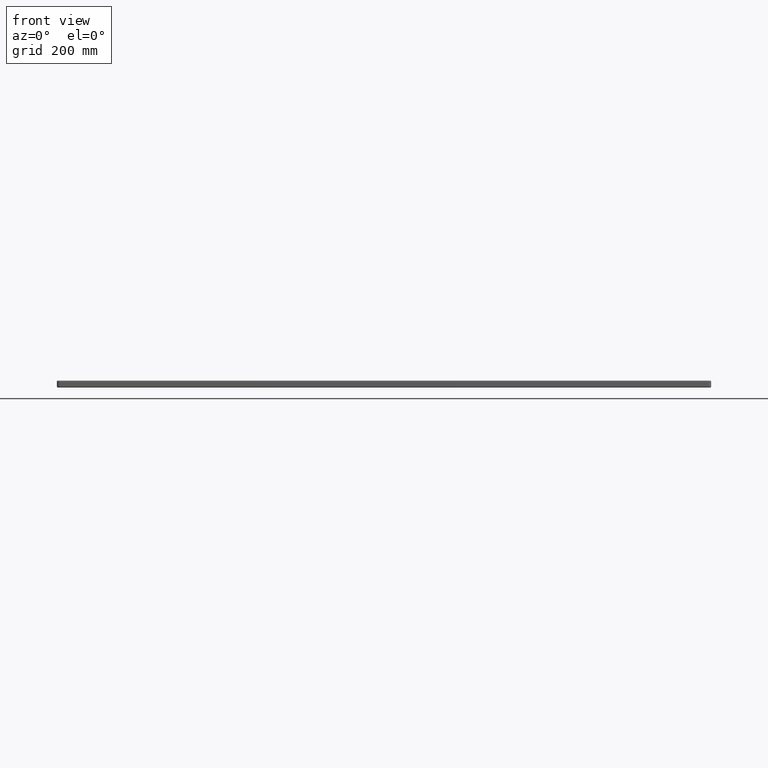
[diagram: clean part render]
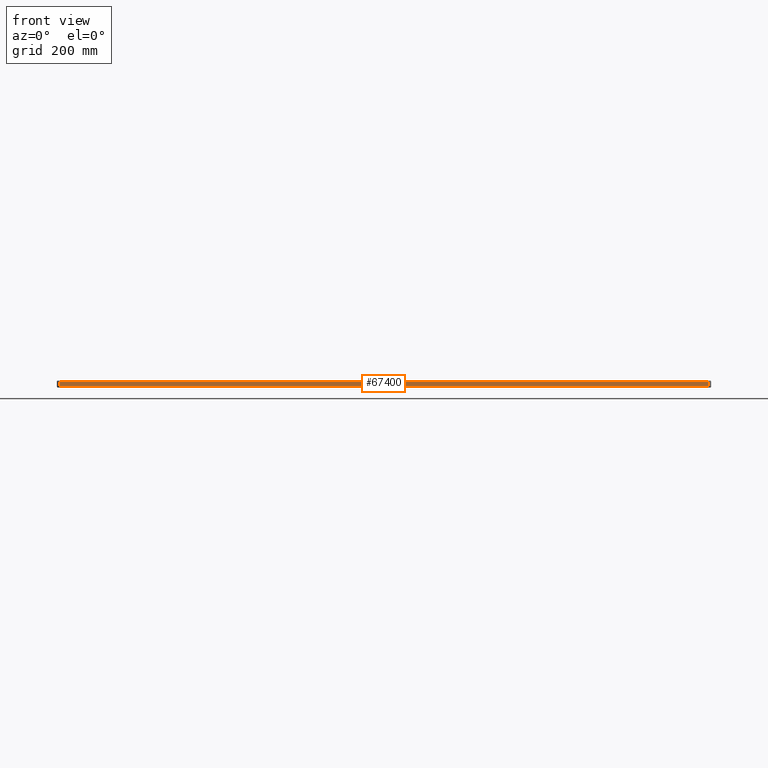
[diagram: same view with one face highlighted and labeled with its STEP entity id]
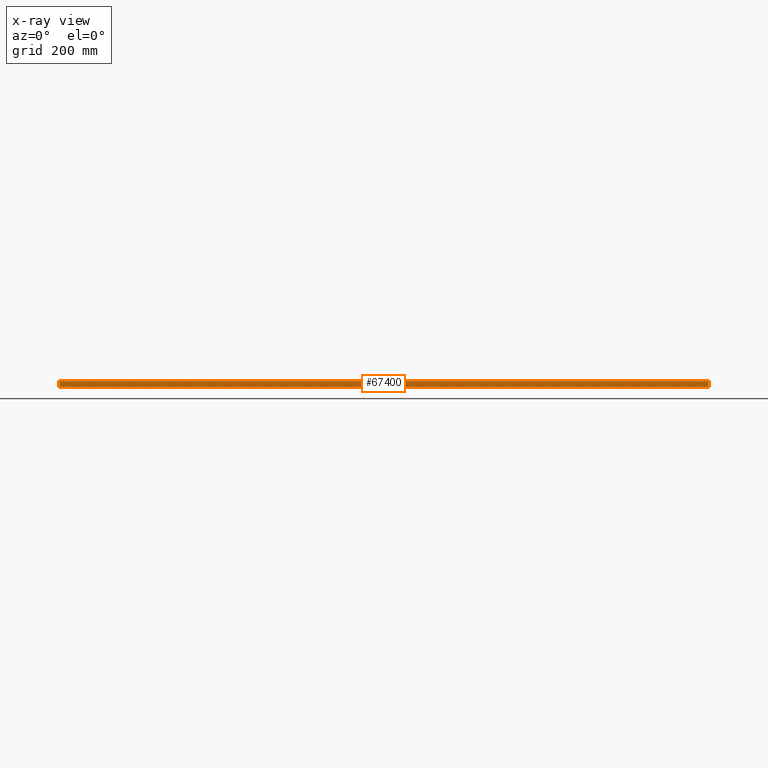
[diagram: x-ray of the same camera — body ghosted, the highlighted face saturated]
A machine part, front view. The second image highlights one B-rep face of the part: STEP entity #67400.
The next image is the same camera in x-ray: the body ghosted, the highlighted face saturated — about 0% of this face is hidden behind the body in this view.
In plain terms, the highlighted planar face has unit normal (0, -1, 0).
Its self-contained STEP definition (entity closure, byte-faithful):
#597 = CARTESIAN_POINT ( 'NONE',  ( 1194.999999999999800, 0.0000000000000000000, -11.00000000000000000 ) ) ;
#5150 = PLANE ( 'NONE',  #39361 ) ;
#7007 = EDGE_CURVE ( 'NONE', #16571, #21562, #35879, .T. ) ;
#11048 = VERTEX_POINT ( 'NONE', #597 ) ;
#11576 = ORIENTED_EDGE ( 'NONE', *, *, #7007, .T. ) ;
#12532 = FACE_OUTER_BOUND ( 'NONE', #80395, .T. ) ;
#16023 = CARTESIAN_POINT ( 'NONE',  ( 4.999999999999999100, 0.0000000000000000000, -11.00000000000000000 ) ) ;
#16312 = ORIENTED_EDGE ( 'NONE', *, *, #62790, .T. ) ;
#16571 = VERTEX_POINT ( 'NONE', #53076 ) ;
#16697 = ORIENTED_EDGE ( 'NONE', *, *, #30887, .T. ) ;
#17261 = CARTESIAN_POINT ( 'NONE',  ( 0.0000000000000000000, 0.0000000000000000000, -13.00000000000000000 ) ) ;
#17267 = VECTOR ( 'NONE', #76889, 1000.000000000000000 ) ;
#21562 = VERTEX_POINT ( 'NONE', #16023 ) ;
#22630 = CARTESIAN_POINT ( 'NONE',  ( 4.999999999999999100, 0.0000000000000000000, -2.000000000000000000 ) ) ;
#23368 = VECTOR ( 'NONE', #63546, 1000.000000000000000 ) ;
#26238 = CARTESIAN_POINT ( 'NONE',  ( 1194.999999999999800, 0.0000000000000000000, -2.000000000000000000 ) ) ;
#27109 = LINE ( 'NONE', #57130, #17267 ) ;
#29175 = ORIENTED_EDGE ( 'NONE', *, *, #37872, .T. ) ;
#30887 = EDGE_CURVE ( 'NONE', #52506, #16571, #32700, .T. ) ;
#32700 = LINE ( 'NONE', #22630, #73019 ) ;
#35879 = LINE ( 'NONE', #61504, #48724 ) ;
#37872 = EDGE_CURVE ( 'NONE', #21562, #11048, #40127, .T. ) ;
#39361 = AXIS2_PLACEMENT_3D ( 'NONE', #17261, #73952, #73371 ) ;
#40127 = LINE ( 'NONE', #50603, #23368 ) ;
#42239 = DIRECTION ( 'NONE',  ( -0.0000000000000000000, -0.0000000000000000000, -1.000000000000000000 ) ) ;
#48724 = VECTOR ( 'NONE', #42239, 1000.000000000000000 ) ;
#50603 = CARTESIAN_POINT ( 'NONE',  ( 0.0000000000000000000, 0.0000000000000000000, -11.00000000000000000 ) ) ;
#52506 = VERTEX_POINT ( 'NONE', #26238 ) ;
#53076 = CARTESIAN_POINT ( 'NONE',  ( 4.999999999999999100, 0.0000000000000000000, -2.000000000000000000 ) ) ;
#57130 = CARTESIAN_POINT ( 'NONE',  ( 1194.999999999999800, 0.0000000000000000000, -13.00000000000000000 ) ) ;
#61504 = CARTESIAN_POINT ( 'NONE',  ( 4.999999999999999100, 0.0000000000000000000, -13.00000000000000000 ) ) ;
#62790 = EDGE_CURVE ( 'NONE', #11048, #52506, #27109, .T. ) ;
#63546 = DIRECTION ( 'NONE',  ( 1.000000000000000000, 0.0000000000000000000, 0.0000000000000000000 ) ) ;
#67400 = ADVANCED_FACE ( 'NONE', ( #12532 ), #5150, .T. ) ;
#73019 = VECTOR ( 'NONE', #73466, 1000.000000000000000 ) ;
#73371 = DIRECTION ( 'NONE',  ( 0.0000000000000000000, -0.0000000000000000000, -1.000000000000000000 ) ) ;
#73466 = DIRECTION ( 'NONE',  ( -1.000000000000000000, -0.0000000000000000000, 0.0000000000000000000 ) ) ;
#73952 = DIRECTION ( 'NONE',  ( 0.0000000000000000000, -1.000000000000000000, 0.0000000000000000000 ) ) ;
#76889 = DIRECTION ( 'NONE',  ( -0.0000000000000000000, 0.0000000000000000000, 1.000000000000000000 ) ) ;
#80395 = EDGE_LOOP ( 'NONE', ( #16312, #16697, #11576, #29175 ) ) ;